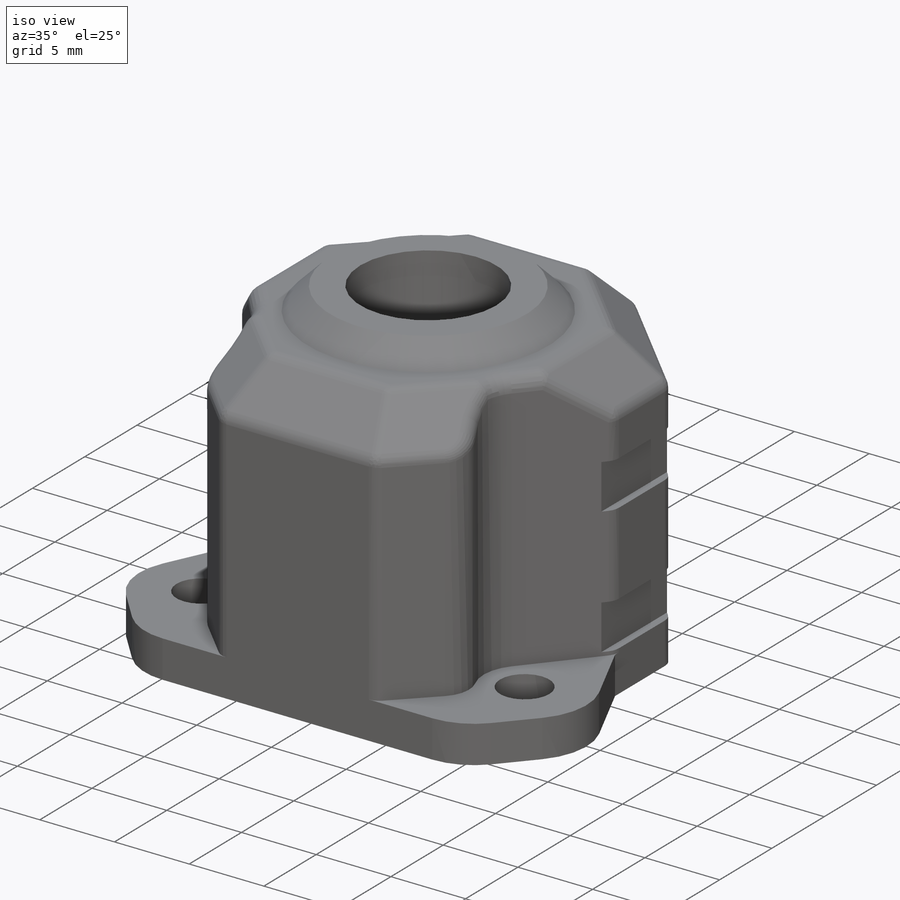
[diagram: iso view]
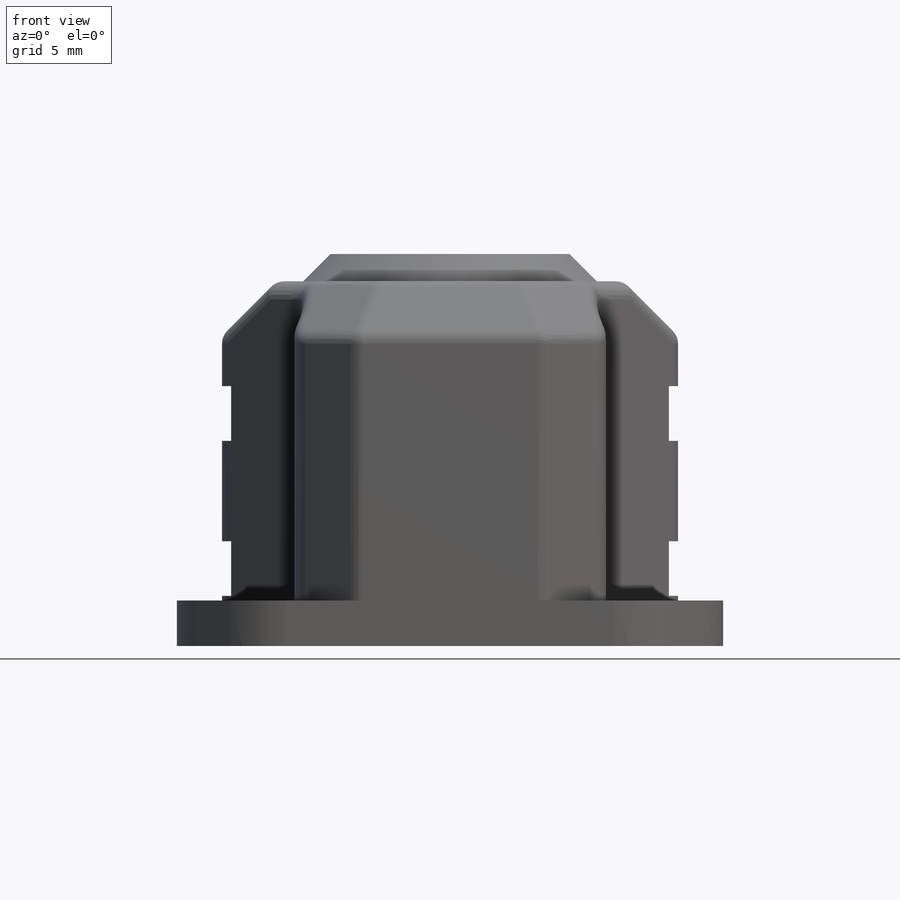
[diagram: front view]
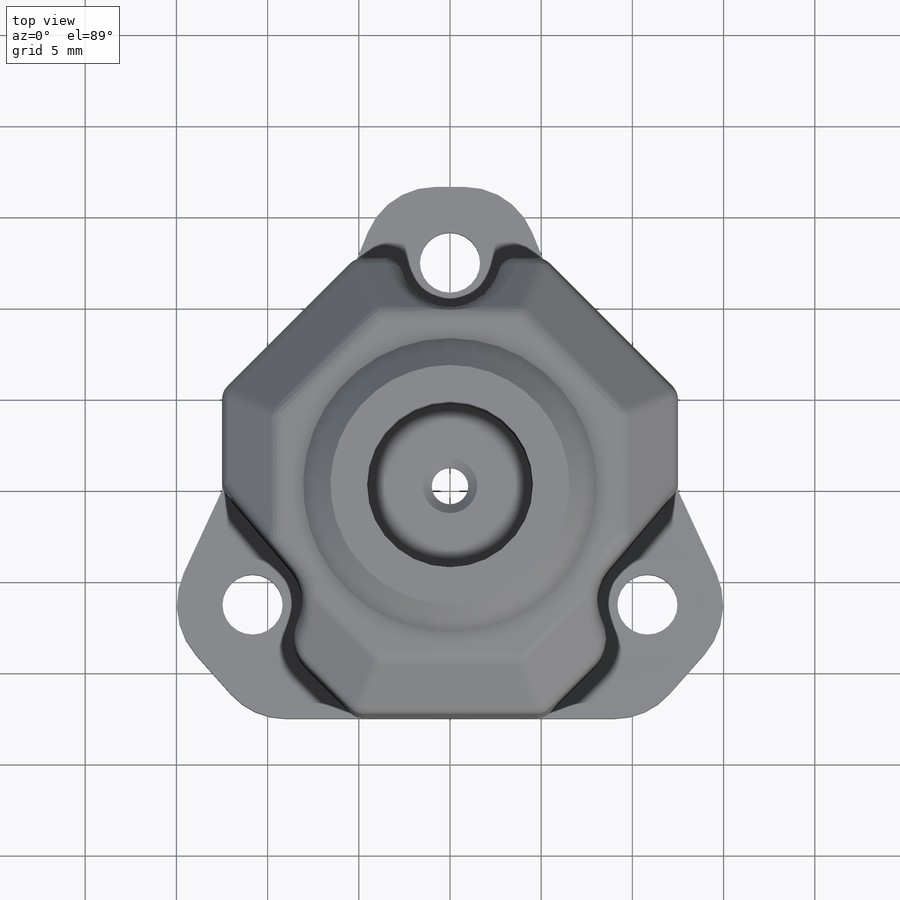
[diagram: top view]
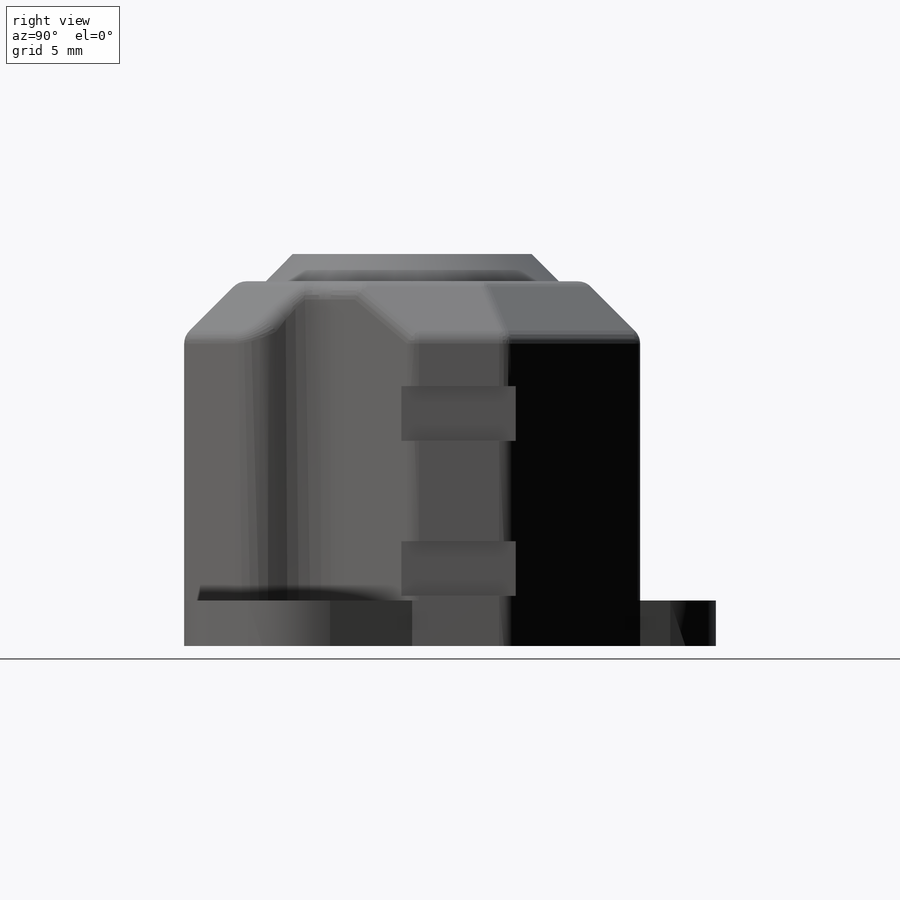
[diagram: right view]
SOLIDWORKS PART (.sldprt)
format: sldprt  version: not decoded by parser v0  size: 1,605,120 bytes
history: native  units: mm
features: sketch x10, cut_extrude x6, extrude x3, chamfer x3, fillet x3, material x1, cut_revolve x1 (+13 scaffold rows collapsed)
feature tree (40):
  scaffold x13  (default folders/planes/origin — collapsed)
  material  "Material <not specified>"
  sketch  "Sketch2"  dims[c1.D1=~8.656181mm c2.D1=45.0deg c2.D2=24.0mm c2.D3=10.0mm c2.D4=22.0mm c3.D1=25.0mm]
  extrude  "Boss-Extrude1"  Depth=20mm
  sketch  "Sketch4"  dims[c1.D1=2.0mm c1.D2=9.1mm c1.D3=9.0mm c1.D4=3.0mm c1.D5=3.81mm c1.D6=1.524mm c1.D7=16.0mm c1.D8=12.0mm c1.D9=4.25mm c1.D10=0.762mm c1.D11=~2.140244mm c2.D9=4.191mm c2.D10=1.905mm c2.D11=2.0mm]
  cut_revolve  "Cut-Revolve3"  Angle=360deg
  chamfer  "Chamfer3"  Distance=0.5mm Angle=45deg
  chamfer  "Chamfer2"  Distance=3mm Angle=45deg
  sketch  "Sketch8"  dims[c1.D3=3.2mm c1.D5=3.0mm c1.D6=3.0mm c1.D7=3.0mm c1.D8=3.0mm c1.D1=3.3mm c2.D6=4.0mm c2.D8=4.0mm c2.D2=12.5mm c2.D4=1.5mm c3.D2=~19.647346mm c4.D2=120.0deg c4.D3=12.5mm c4.D7=2.5mm c4.D5=2.5mm c4.D4=3.0]
  extrude  "Boss-Extrude2"  Depth=2.5mm
  sketch  "Sketch16"  dims[D1=0.0mm D2=0.0mm D3=0.0mm D4=0.0mm D5=0.0mm]
  cut_extrude  "Cut-Extrude13"  [1 undecoded]
  sketch  "Sketch17"  dims[c1.D1=5.5mm c1.D2=~1.674682mm c2.D2=45.0deg c3.D2=1.0mm c3.D3=~3.259523mm c4.D2=~2.569867mm c5.D2=45.0deg]
  cut_extrude  "Cut-Extrude14"  [1 undecoded]
  fillet  "Fillet8"  Radius=2mm
  fillet  "Fillet10"  Radius=1mm
  fillet  "Fillet11"  Radius=1mm
  sketch  "Sketch22"  dims[D1=2.0mm]
  extrude  "Boss-Extrude3"  Depth=1.5mm
  chamfer  "Chamfer7"  Distance=1.5mm Angle=45deg
  sketch  "Sketch7"  dims[D1=3.0mm D2=0.5mm]
  cut_extrude  "Cut-Extrude5"  Depth=15mm
  sketch  "Sketch18"
  cut_extrude  "Cut-Extrude15"  [1 undecoded]
  sketch  "Sketch19"
  cut_extrude  "Cut-Extrude16"  [1 undecoded]
  sketch  "Sketch20"
  cut_extrude  "Cut-Extrude17"  [1 undecoded]
decode coverage: 18 of 26 modeling features carry decoded parameters
note: ~ marks probable driven/reference dimensions
note: 5 parameter values undecoded
summary: no parameter record found for 5 features
note: suppression state not decoded; provenance and decode notes live in map.json
